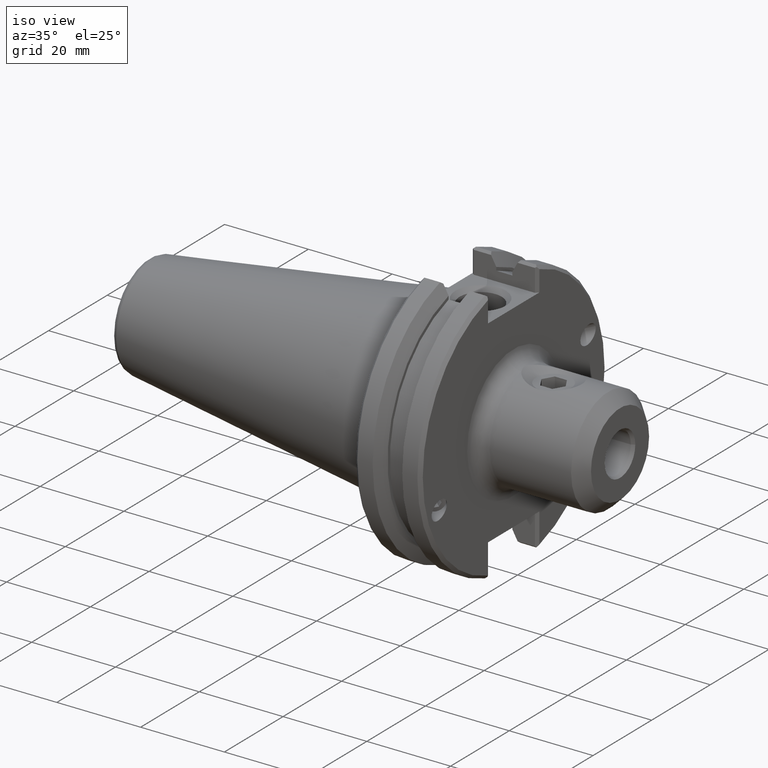
[diagram: clean part render]
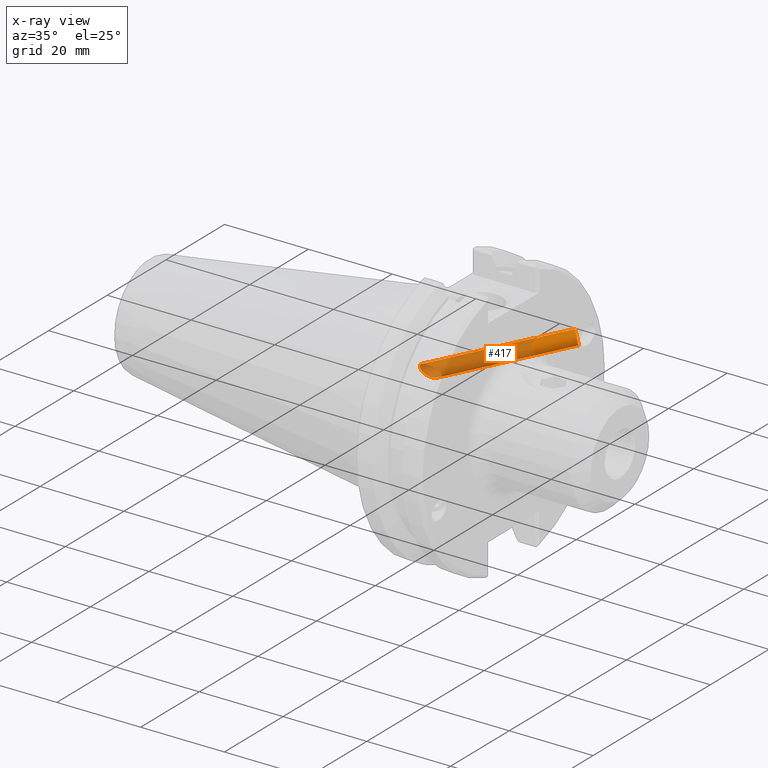
[diagram: x-ray — body ghosted, one internal face saturated and labeled with its STEP entity id]
A machine part, iso view, then the same camera in x-ray: the body is ghosted and one INTERNAL B-rep face — a face not visible from any outside direction — is saturated and labeled: STEP entity #417.
In plain terms, the highlighted cylindrical surface (bore or boss wall) has radius 1.65 mm, axis along (-0.766, -0.604, -0.2198).
Its self-contained STEP definition (entity closure, byte-faithful):
#312=CARTESIAN_POINT('',(0.168048821694482,0.54002723584763,0.196553839541592));
#313=DIRECTION('',(-0.766044443118978,-0.604022773555054,-0.219846310392954));
#314=DIRECTION('',(-0.642787609686549,0.719846310392947,0.262002630229381));
#315=AXIS2_PLACEMENT_3D('',#312,#313,#314);
#316=CYLINDRICAL_SURFACE('',#315,0.06496062992126);
#317=CARTESIAN_POINT('',(0.639434867860081,0.991399130395797,0.360839773741467));
#318=VERTEX_POINT('',#317);
#319=CARTESIAN_POINT('',(0.681190755890899,0.944637460626176,0.34381991784074));
#320=DIRECTION('',(-0.76604444311897,-0.604022773555063,-0.219846310392958));
#321=DIRECTION('',(-0.642787609686549,0.719846310392947,0.262002630229381));
#322=AXIS2_PLACEMENT_3D('',#319,#320,#321);
#323=CIRCLE('',#322,0.06496062992126);
#324=EDGE_CURVE('',#318,#318,#323,.T.);
#325=ORIENTED_EDGE('',*,*,#324,.F.);
#326=EDGE_LOOP('',(#325));
#327=FACE_OUTER_BOUND('',#326,.T.);
#328=CARTESIAN_POINT('',(-0.212499384876504,0.217748755372063,0.148383723952182));
#329=VERTEX_POINT('',#328);
#330=CARTESIAN_POINT('',(-0.212499384876504,0.217748755372064,0.148383723952181));
#331=CARTESIAN_POINT('',(-0.18734238627168,0.217748755372063,0.148383723952183));
#332=CARTESIAN_POINT('',(-0.157964825923857,0.221831319353115,0.142759578432448));
#333=CARTESIAN_POINT('',(-0.126250037374453,0.230957396395005,0.12697773392008));
#334=CARTESIAN_POINT('',(-0.115504913552894,0.235033890840845,0.119503758071347));
#335=CARTESIAN_POINT('',(-0.107002287606018,0.240351652142531,0.108043034622914));
#336=CARTESIAN_POINT('',(-0.105049115115383,0.241848183216024,0.104674616011793));
#337=CARTESIAN_POINT('',(-0.102413483003433,0.24482669063548,0.097504925885065));
#338=CARTESIAN_POINT('',(-0.101746197502704,0.24630767837773,0.093697674861868));
#339=CARTESIAN_POINT('',(-0.101746197502704,0.249027457181387,0.08622514401291));
#340=CARTESIAN_POINT('',(-0.102489004303413,0.250332872671553,0.082347248545531));
#341=CARTESIAN_POINT('',(-0.105245397199112,0.252675570303889,0.074851690595969));
#342=CARTESIAN_POINT('',(-0.107259530008974,0.253712996641185,0.071234274241114));
#343=CARTESIAN_POINT('',(-0.114663431374415,0.25642788633653,0.06104435182431));
#344=CARTESIAN_POINT('',(-0.121453946483014,0.257710672023589,0.055135423620113));
#345=CARTESIAN_POINT('',(-0.139847978803885,0.260163784235252,0.042568785725057));
#346=CARTESIAN_POINT('',(-0.153839708197751,0.260994777461413,0.036481538246929));
#347=CARTESIAN_POINT('',(-0.183098401372984,0.262006489700475,0.028315641838787));
#348=CARTESIAN_POINT('',(-0.198382362670204,0.262184443284453,0.026297674794958));
#349=CARTESIAN_POINT('',(-0.224569308617087,0.262184443284453,0.026297674794958));
#350=CARTESIAN_POINT('',(-0.237703634862703,0.26205614905087,0.027791564190284));
#351=CARTESIAN_POINT('',(-0.262368319088493,0.261177668788565,0.03510018303618));
#352=CARTESIAN_POINT('',(-0.273894374702214,0.260422279751224,0.040928798307356));
#353=CARTESIAN_POINT('',(-0.288984312262145,0.257998241941562,0.053815946812374));
#354=CARTESIAN_POINT('',(-0.294482500321853,0.2566099397536,0.060326891488756));
#355=CARTESIAN_POINT('',(-0.301926005558002,0.252782247423653,0.074760486318255));
#356=CARTESIAN_POINT('',(-0.303867797055435,0.250318350205798,0.08267844457741));
#357=CARTESIAN_POINT('',(-0.303867797055435,0.244899660948376,0.097566170955218));
#358=CARTESIAN_POINT('',(-0.301926005558002,0.24169755025753,0.10521544148367));
#359=CARTESIAN_POINT('',(-0.294482500321853,0.235351996777218,0.11873260980042));
#360=CARTESIAN_POINT('',(-0.288984312262145,0.232230343388343,0.12461266623414));
#361=CARTESIAN_POINT('',(-0.273894374702214,0.225803564699129,0.136042936203521));
#362=CARTESIAN_POINT('',(-0.262368319088493,0.222635664595636,0.140993469256779));
#363=CARTESIAN_POINT('',(-0.237703634862703,0.2186107298809,0.147156872338516));
#364=CARTESIAN_POINT('',(-0.224569308617087,0.217748755372063,0.148383723952183));
#365=CARTESIAN_POINT('',(-0.212499384876504,0.217748755372062,0.148383723952183));
#366=B_SPLINE_CURVE_WITH_KNOTS('',3,(#330,#331,#332,#333,#334,#335,#336,#337,#338,#339,#340,#341,#342,#343,#344,#345,#346,#347,#348,#349,#350,#351,#352,#353,#354,#355,#356,#357,#358,#359,#360,#361,#362,#363,#364,#365),.UNSPECIFIED.,.T.,.U.,(4,2,2,2,2,2,2,2,2,2,2,2,2,2,2,2,2,4),(0.0,0.19169632936876,0.278748277157698,0.307741052737161,0.336733828316625,0.368336064137207,0.39993829995779,0.463142771598954,0.570714480810961,0.678286190022967,0.770259008926212,0.862231827829456,0.922594372181469,0.982956916533482,1.043319460885495,1.103682005237507,1.195654824140752,1.287627643043996),.UNSPECIFIED.);
#367=EDGE_CURVE('',#329,#329,#366,.T.);
#368=ORIENTED_EDGE('',*,*,#367,.F.);
#369=EDGE_LOOP('',(#368));
#370=FACE_BOUND('',#369,.T.);
#371=CARTESIAN_POINT('',(0.432935656604587,0.752234657880336,0.33957554219261));
#372=VERTEX_POINT('',#371);
#373=CARTESIAN_POINT('',(0.463832838020224,0.795890446278262,0.348647305657775));
#374=VERTEX_POINT('',#373);
#375=CARTESIAN_POINT('',(0.432935656604587,0.752234657880337,0.33957554219261));
#376=CARTESIAN_POINT('',(0.437811188416815,0.756745852171958,0.341046092421256));
#377=CARTESIAN_POINT('',(0.442502860616757,0.761749529709684,0.342533930815673));
#378=CARTESIAN_POINT('',(0.453671073827101,0.776000901260248,0.346106517477117));
#379=CARTESIAN_POINT('',(0.459309163086202,0.785965884081536,0.34790426623513));
#380=CARTESIAN_POINT('',(0.463737834703973,0.795681256235089,0.348631983374834));
#381=CARTESIAN_POINT('',(0.46378535022469,0.795785751977451,0.348639695450204));
#382=CARTESIAN_POINT('',(0.463832838020223,0.795890446278262,0.348647305657775));
#383=B_SPLINE_CURVE_WITH_KNOTS('',3,(#375,#376,#377,#378,#379,#380,#381,#382),.UNSPECIFIED.,.F.,.U.,(4,2,2,4),(0.031610138581078,0.080673231518162,0.161346463036324,0.162221886457671),.UNSPECIFIED.);
#384=EDGE_CURVE('',#372,#374,#383,.T.);
#385=ORIENTED_EDGE('',*,*,#384,.T.);
#386=CARTESIAN_POINT('',(0.463832838020224,0.83379362193036,0.244509186428014));
#387=VERTEX_POINT('',#386);
#388=CARTESIAN_POINT('',(0.465696957641438,0.774721520537127,0.281975573320967));
#389=DIRECTION('',(0.999048221581858,0.040988816430412,0.014918709118472));
#390=DIRECTION('',(-0.04361938736534,0.938798241629757,0.34169461593468));
#391=AXIS2_PLACEMENT_3D('',#388,#389,#390);
#392=ELLIPSE('',#391,0.081881082012478,0.06496062992126);
#393=EDGE_CURVE('',#387,#374,#392,.T.);
#394=ORIENTED_EDGE('',*,*,#393,.F.);
#395=CARTESIAN_POINT('',(0.432935656604587,0.794520130664736,0.22339716054651));
#396=VERTEX_POINT('',#395);
#397=CARTESIAN_POINT('',(0.463832838020223,0.83379362193036,0.244509186428015));
#398=CARTESIAN_POINT('',(0.46378535022469,0.833708529695863,0.244447719985869));
#399=CARTESIAN_POINT('',(0.463737834703973,0.833623524086605,0.244386459209896));
#400=CARTESIAN_POINT('',(0.459309163086202,0.825713349674783,0.238699002037131));
#401=CARTESIAN_POINT('',(0.453671073827101,0.81692415933178,0.233670789995068));
#402=CARTESIAN_POINT('',(0.442502860616757,0.803710560908139,0.227246945100886));
#403=CARTESIAN_POINT('',(0.437811188416815,0.798921157450058,0.225170393511071));
#404=CARTESIAN_POINT('',(0.432935656604587,0.794520130664736,0.22339716054651));
#405=B_SPLINE_CURVE_WITH_KNOTS('',3,(#397,#398,#399,#400,#401,#402,#403,#404),.UNSPECIFIED.,.F.,.U.,(4,2,2,4),(0.593411757893453,0.5942871813148,0.674960412832962,0.724023505770045),.UNSPECIFIED.);
#406=EDGE_CURVE('',#387,#396,#405,.T.);
#407=ORIENTED_EDGE('',*,*,#406,.T.);
#408=CARTESIAN_POINT('',(0.465696957641438,0.774721520537127,0.281975573320967));
#409=DIRECTION('',(0.043619387365336,-0.938798241629757,-0.341694615934681));
#410=DIRECTION('',(-0.999048221581858,-0.040988816430408,-0.014918709118471));
#411=AXIS2_PLACEMENT_3D('',#408,#409,#410);
#412=ELLIPSE('',#411,0.106709503634353,0.06496062992126);
#413=EDGE_CURVE('',#372,#396,#412,.T.);
#414=ORIENTED_EDGE('',*,*,#413,.F.);
#415=EDGE_LOOP('',(#385,#394,#407,#414));
#416=FACE_BOUND('',#415,.T.);
#417=ADVANCED_FACE('',(#327,#370,#416),#316,.F.);